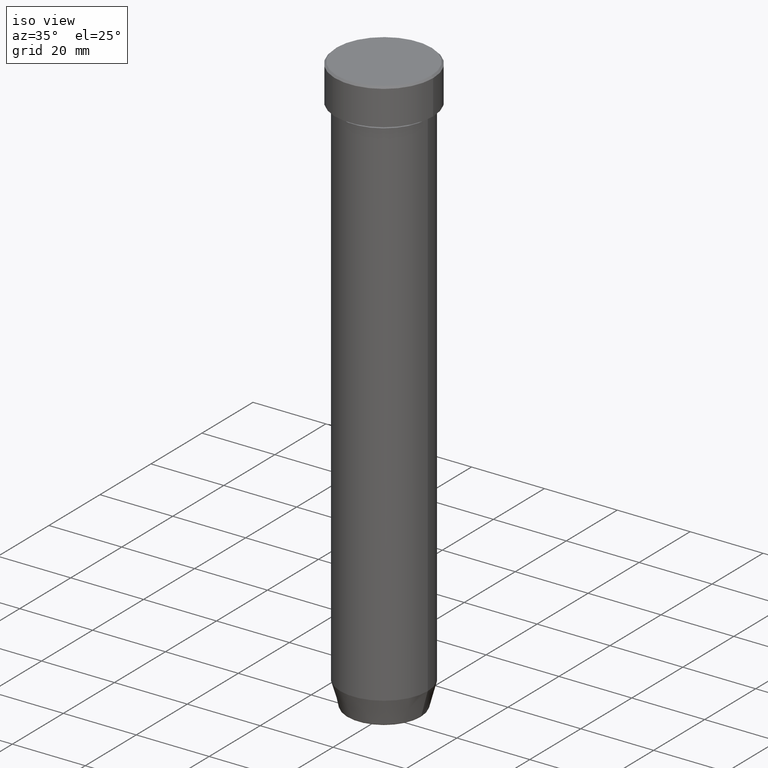
[diagram: clean part render]
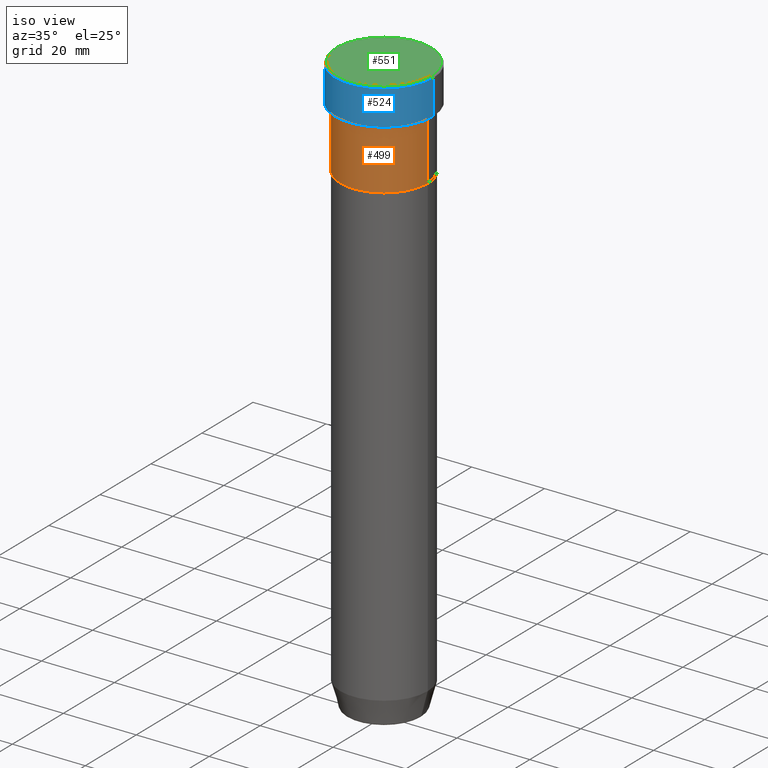
[diagram: same view with three faces highlighted in distinct colors, each labeled with its STEP entity id]
A machine part, iso view with three faces highlighted in distinct colors.
Their STEP definitions:

[orange] entity #499 — the highlighted cylindrical surface (partial cylindrical patch) has radius 12 mm, axis along (-0, -0, 1).
#18 = CARTESIAN_POINT ( 'NONE',  ( 12.00000000000000000, 0.000000000000000000, -11.00000000000000000 ) ) ;
#32 = EDGE_CURVE ( 'NONE', #230, #39, #99, .T. ) ;
#35 = EDGE_CURVE ( 'NONE', #39, #263, #57, .T. ) ;
#39 = VERTEX_POINT ( 'NONE', #249 ) ;
#43 = ORIENTED_EDGE ( 'NONE', *, *, #526, .F. ) ;
#51 = DIRECTION ( 'NONE',  ( 1.000000000000000000, 0.000000000000000000, 0.000000000000000000 ) ) ;
#57 = LINE ( 'NONE', #512, #511 ) ;
#65 = EDGE_CURVE ( 'NONE', #333, #263, #114, .T. ) ;
#71 = AXIS2_PLACEMENT_3D ( 'NONE', #452, #279, #534 ) ;
#84 = FACE_OUTER_BOUND ( 'NONE', #397, .T. ) ;
#93 = CARTESIAN_POINT ( 'NONE',  ( -12.00000000000000000, 1.469576158976823947E-15, 0.000000000000000000 ) ) ;
#99 = CIRCLE ( 'NONE', #428, 12.00000000000000000 ) ;
#114 = CIRCLE ( 'NONE', #116, 12.00000000000000000 ) ;
#116 = AXIS2_PLACEMENT_3D ( 'NONE', #543, #501, #360 ) ;
#152 = DIRECTION ( 'NONE',  ( -0.000000000000000000, -0.000000000000000000, 1.000000000000000000 ) ) ;
#168 = VECTOR ( 'NONE', #445, 1000.000000000000000 ) ;
#171 = ORIENTED_EDGE ( 'NONE', *, *, #65, .F. ) ;
#226 = LINE ( 'NONE', #93, #168 ) ;
#230 = VERTEX_POINT ( 'NONE', #467 ) ;
#249 = CARTESIAN_POINT ( 'NONE',  ( 12.00000000000000000, 0.000000000000000000, -27.00000000000000000 ) ) ;
#263 = VERTEX_POINT ( 'NONE', #18 ) ;
#279 = DIRECTION ( 'NONE',  ( -0.000000000000000000, -0.000000000000000000, 1.000000000000000000 ) ) ;
#330 = ORIENTED_EDGE ( 'NONE', *, *, #32, .T. ) ;
#333 = VERTEX_POINT ( 'NONE', #427 ) ;
#360 = DIRECTION ( 'NONE',  ( 1.000000000000000000, 0.000000000000000000, 0.000000000000000000 ) ) ;
#397 = EDGE_LOOP ( 'NONE', ( #43, #330, #480, #171 ) ) ;
#427 = CARTESIAN_POINT ( 'NONE',  ( -12.00000000000000000, 1.469576158976823947E-15, -11.00000000000000000 ) ) ;
#428 = AXIS2_PLACEMENT_3D ( 'NONE', #471, #459, #51 ) ;
#445 = DIRECTION ( 'NONE',  ( -0.000000000000000000, -0.000000000000000000, 1.000000000000000000 ) ) ;
#452 = CARTESIAN_POINT ( 'NONE',  ( 0.000000000000000000, 0.000000000000000000, 0.000000000000000000 ) ) ;
#459 = DIRECTION ( 'NONE',  ( -0.000000000000000000, -0.000000000000000000, 1.000000000000000000 ) ) ;
#467 = CARTESIAN_POINT ( 'NONE',  ( -12.00000000000000000, 1.469576158976823947E-15, -27.00000000000000000 ) ) ;
#471 = CARTESIAN_POINT ( 'NONE',  ( 0.000000000000000000, 0.000000000000000000, -27.00000000000000000 ) ) ;
#480 = ORIENTED_EDGE ( 'NONE', *, *, #35, .T. ) ;
#499 = ADVANCED_FACE ( 'NONE', ( #84 ), #589, .T. ) ;
#501 = DIRECTION ( 'NONE',  ( -0.000000000000000000, -0.000000000000000000, 1.000000000000000000 ) ) ;
#511 = VECTOR ( 'NONE', #152, 1000.000000000000000 ) ;
#512 = CARTESIAN_POINT ( 'NONE',  ( 12.00000000000000000, 0.000000000000000000, 0.000000000000000000 ) ) ;
#526 = EDGE_CURVE ( 'NONE', #230, #333, #226, .T. ) ;
#534 = DIRECTION ( 'NONE',  ( 1.000000000000000000, 0.000000000000000000, 0.000000000000000000 ) ) ;
#543 = CARTESIAN_POINT ( 'NONE',  ( 0.000000000000000000, 0.000000000000000000, -11.00000000000000000 ) ) ;
#589 = CYLINDRICAL_SURFACE ( 'NONE', #71, 12.00000000000000000 ) ;

[blue] entity #524 — the highlighted cylindrical surface (partial cylindrical patch) has radius 13.5 mm, axis along (-0, -0, 1).
#12 = CARTESIAN_POINT ( 'NONE',  ( -13.50000000000000000, 1.653273178848926867E-15, -10.00000000000000000 ) ) ;
#33 = CYLINDRICAL_SURFACE ( 'NONE', #439, 13.50000000000000000 ) ;
#54 = ORIENTED_EDGE ( 'NONE', *, *, #486, .T. ) ;
#62 = DIRECTION ( 'NONE',  ( 0.000000000000000000, 0.000000000000000000, -1.000000000000000000 ) ) ;
#69 = DIRECTION ( 'NONE',  ( -0.000000000000000000, -0.000000000000000000, 1.000000000000000000 ) ) ;
#77 = VERTEX_POINT ( 'NONE', #547 ) ;
#96 = DIRECTION ( 'NONE',  ( 1.000000000000000000, 0.000000000000000000, 0.000000000000000000 ) ) ;
#124 = ORIENTED_EDGE ( 'NONE', *, *, #221, .T. ) ;
#137 = VERTEX_POINT ( 'NONE', #527 ) ;
#139 = AXIS2_PLACEMENT_3D ( 'NONE', #587, #317, #179 ) ;
#160 = CARTESIAN_POINT ( 'NONE',  ( 13.50000000000000000, 0.000000000000000000, 0.000000000000000000 ) ) ;
#167 = VECTOR ( 'NONE', #69, 1000.000000000000000 ) ;
#179 = DIRECTION ( 'NONE',  ( 1.000000000000000000, 0.000000000000000000, 0.000000000000000000 ) ) ;
#221 = EDGE_CURVE ( 'NONE', #77, #137, #267, .T. ) ;
#224 = VERTEX_POINT ( 'NONE', #12 ) ;
#236 = EDGE_CURVE ( 'NONE', #384, #77, #379, .T. ) ;
#243 = CIRCLE ( 'NONE', #139, 13.50000000000000000 ) ;
#267 = CIRCLE ( 'NONE', #558, 13.50000000000000000 ) ;
#270 = LINE ( 'NONE', #338, #167 ) ;
#271 = EDGE_CURVE ( 'NONE', #224, #137, #270, .T. ) ;
#278 = CARTESIAN_POINT ( 'NONE',  ( 0.000000000000000000, 0.000000000000000000, -0.5000000000000091038 ) ) ;
#306 = VECTOR ( 'NONE', #474, 1000.000000000000000 ) ;
#317 = DIRECTION ( 'NONE',  ( -0.000000000000000000, -0.000000000000000000, 1.000000000000000000 ) ) ;
#338 = CARTESIAN_POINT ( 'NONE',  ( -13.50000000000000000, 1.653273178848926867E-15, 0.000000000000000000 ) ) ;
#379 = LINE ( 'NONE', #160, #306 ) ;
#384 = VERTEX_POINT ( 'NONE', #487 ) ;
#439 = AXIS2_PLACEMENT_3D ( 'NONE', #492, #495, #96 ) ;
#446 = ORIENTED_EDGE ( 'NONE', *, *, #271, .F. ) ;
#453 = FACE_OUTER_BOUND ( 'NONE', #498, .T. ) ;
#457 = DIRECTION ( 'NONE',  ( 1.000000000000000000, 0.000000000000000000, 0.000000000000000000 ) ) ;
#474 = DIRECTION ( 'NONE',  ( -0.000000000000000000, -0.000000000000000000, 1.000000000000000000 ) ) ;
#486 = EDGE_CURVE ( 'NONE', #224, #384, #243, .T. ) ;
#487 = CARTESIAN_POINT ( 'NONE',  ( 13.50000000000000000, 0.000000000000000000, -10.00000000000000000 ) ) ;
#492 = CARTESIAN_POINT ( 'NONE',  ( 0.000000000000000000, 0.000000000000000000, 0.000000000000000000 ) ) ;
#495 = DIRECTION ( 'NONE',  ( -0.000000000000000000, -0.000000000000000000, 1.000000000000000000 ) ) ;
#496 = ORIENTED_EDGE ( 'NONE', *, *, #236, .T. ) ;
#498 = EDGE_LOOP ( 'NONE', ( #446, #54, #496, #124 ) ) ;
#524 = ADVANCED_FACE ( 'NONE', ( #453 ), #33, .T. ) ;
#527 = CARTESIAN_POINT ( 'NONE',  ( -13.50000000000000000, 1.653273178848926867E-15, -0.5000000000000091038 ) ) ;
#547 = CARTESIAN_POINT ( 'NONE',  ( 13.50000000000000000, 0.000000000000000000, -0.5000000000000091038 ) ) ;
#558 = AXIS2_PLACEMENT_3D ( 'NONE', #278, #62, #457 ) ;
#587 = CARTESIAN_POINT ( 'NONE',  ( 0.000000000000000000, 0.000000000000000000, -10.00000000000000000 ) ) ;

[green] entity #551 — the highlighted planar face has unit normal (0, -0, 1).
#41 = FACE_OUTER_BOUND ( 'NONE', #409, .T. ) ;
#83 = DIRECTION ( 'NONE',  ( 1.000000000000000000, 0.000000000000000000, 0.000000000000000000 ) ) ;
#123 = DIRECTION ( 'NONE',  ( -0.000000000000000000, -0.000000000000000000, 1.000000000000000000 ) ) ;
#141 = CARTESIAN_POINT ( 'NONE',  ( 12.99999999999999645, 1.622657008870242882E-15, 0.000000000000000000 ) ) ;
#173 = EDGE_CURVE ( 'NONE', #277, #355, #576, .T. ) ;
#174 = DIRECTION ( 'NONE',  ( 1.000000000000000000, 0.000000000000000000, 0.000000000000000000 ) ) ;
#184 = DIRECTION ( 'NONE',  ( 1.000000000000000000, 0.000000000000000000, 0.000000000000000000 ) ) ;
#256 = CARTESIAN_POINT ( 'NONE',  ( -12.99999999999999645, 0.000000000000000000, 0.000000000000000000 ) ) ;
#273 = DIRECTION ( 'NONE',  ( 0.000000000000000000, -0.000000000000000000, 1.000000000000000000 ) ) ;
#277 = VERTEX_POINT ( 'NONE', #141 ) ;
#300 = CIRCLE ( 'NONE', #469, 12.99999999999999645 ) ;
#304 = CARTESIAN_POINT ( 'NONE',  ( 0.000000000000000000, 0.000000000000000000, 0.000000000000000000 ) ) ;
#355 = VERTEX_POINT ( 'NONE', #256 ) ;
#362 = ORIENTED_EDGE ( 'NONE', *, *, #515, .T. ) ;
#402 = PLANE ( 'NONE',  #598 ) ;
#409 = EDGE_LOOP ( 'NONE', ( #362, #553 ) ) ;
#410 = CARTESIAN_POINT ( 'NONE',  ( 0.000000000000000000, 0.000000000000000000, 0.000000000000000000 ) ) ;
#443 = CARTESIAN_POINT ( 'NONE',  ( 0.000000000000000000, 0.000000000000000000, 0.000000000000000000 ) ) ;
#460 = AXIS2_PLACEMENT_3D ( 'NONE', #304, #489, #83 ) ;
#469 = AXIS2_PLACEMENT_3D ( 'NONE', #443, #123, #184 ) ;
#489 = DIRECTION ( 'NONE',  ( -0.000000000000000000, -0.000000000000000000, 1.000000000000000000 ) ) ;
#515 = EDGE_CURVE ( 'NONE', #355, #277, #300, .T. ) ;
#551 = ADVANCED_FACE ( 'NONE', ( #41 ), #402, .T. ) ;
#553 = ORIENTED_EDGE ( 'NONE', *, *, #173, .T. ) ;
#576 = CIRCLE ( 'NONE', #460, 12.99999999999999645 ) ;
#598 = AXIS2_PLACEMENT_3D ( 'NONE', #410, #273, #174 ) ;